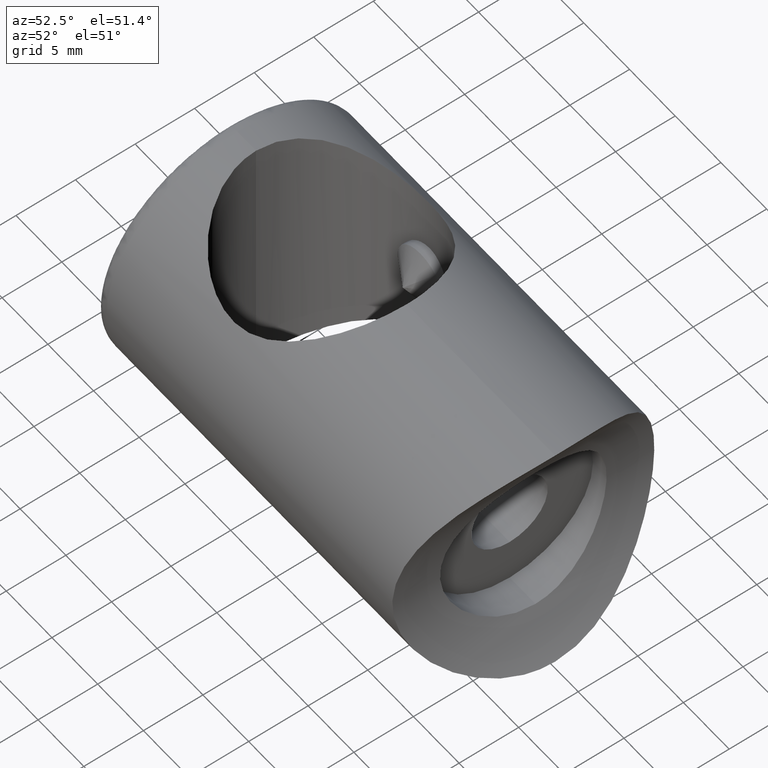
[diagram: clean part render]
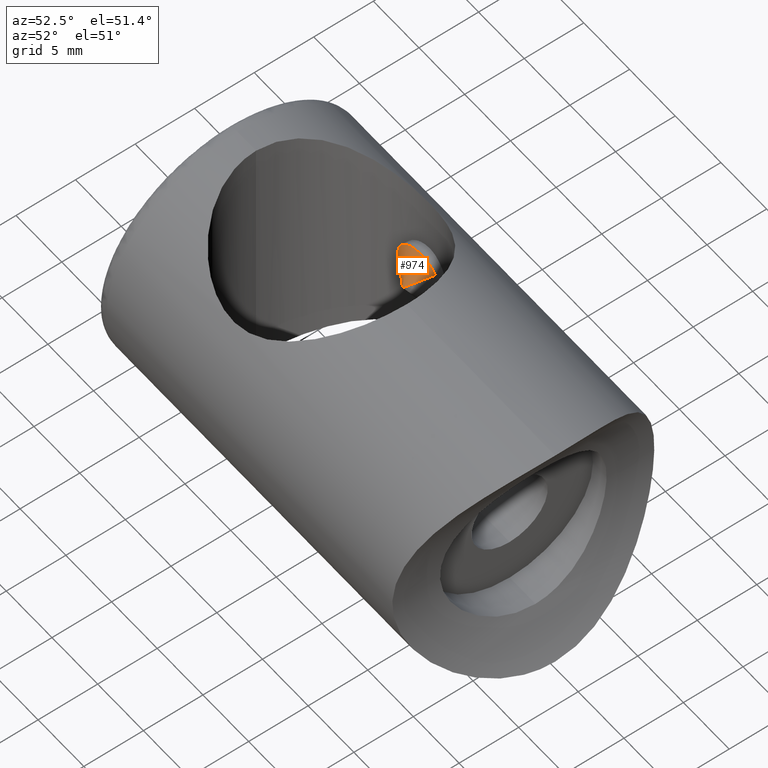
[diagram: same view with one face highlighted and labeled with its STEP entity id]
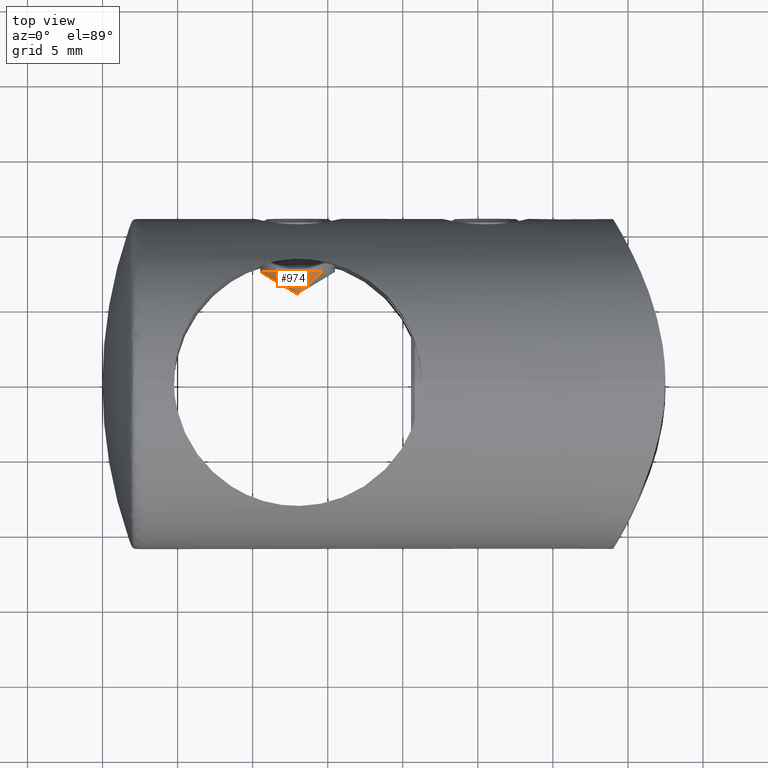
[diagram: same view with one face highlighted and labeled with its STEP entity id]
A machine part, auxiliary view. The second image highlights one B-rep face of the part: STEP entity #974.
A second angle (top view) of the same face is appended — the face is thin or edge-on in the first view.
In plain terms, the highlighted conical surface has half-angle 59 deg.
Its self-contained STEP definition (entity closure, byte-faithful):
#64 = DIRECTION ( 'NONE',  ( -0.5150380749100517100, 1.049727191138620400E-016, -0.8571673007021136700 ) ) ;
#139 = AXIS2_PLACEMENT_3D ( 'NONE', #2960, #436, #856 ) ;
#316 = AXIS2_PLACEMENT_3D ( 'NONE', #4522, #1967, #2008 ) ;
#355 = CONICAL_SURFACE ( 'NONE', #316, 0.005000000000000000100, 1.029744258676657400 ) ;
#436 = DIRECTION ( 'NONE',  ( -1.000000000000000000, -0.0000000000000000000, -0.0000000000000000000 ) ) ;
#751 = FACE_OUTER_BOUND ( 'NONE', #3851, .T. ) ;
#769 = CARTESIAN_POINT ( 'NONE',  ( 5.000000000000000900, 6.123233995736766000E-019, -0.005000000000000000100 ) ) ;
#856 = DIRECTION ( 'NONE',  ( 0.0000000000000000000, 0.0000000000000000000, 1.000000000000000000 ) ) ;
#928 = CARTESIAN_POINT ( 'NONE',  ( 3.500852755526247900, 0.0000000000000000000, 2.500000000000000000 ) ) ;
#974 = ADVANCED_FACE ( 'NONE', ( #751 ), #355, .T. ) ;
#1237 = AXIS2_PLACEMENT_3D ( 'NONE', #3040, #4715, #1675 ) ;
#1512 = CARTESIAN_POINT ( 'NONE',  ( 5.000000000000000900, 0.0000000000000000000, 0.005000000000000000100 ) ) ;
#1675 = DIRECTION ( 'NONE',  ( 0.0000000000000000000, 0.0000000000000000000, 1.000000000000000000 ) ) ;
#1680 = VERTEX_POINT ( 'NONE', #928 ) ;
#1955 = VECTOR ( 'NONE', #64, 1000.000000000000000 ) ;
#1961 = LINE ( 'NONE', #1512, #4089 ) ;
#1967 = DIRECTION ( 'NONE',  ( -1.000000000000000000, -0.0000000000000000000, -0.0000000000000000000 ) ) ;
#2008 = DIRECTION ( 'NONE',  ( 0.0000000000000000000, 0.0000000000000000000, 1.000000000000000000 ) ) ;
#2296 = CIRCLE ( 'NONE', #139, 2.500000000000000000 ) ;
#2345 = VERTEX_POINT ( 'NONE', #3347 ) ;
#2610 = EDGE_CURVE ( 'NONE', #2787, #1680, #2296, .T. ) ;
#2712 = EDGE_CURVE ( 'NONE', #2345, #1680, #1961, .T. ) ;
#2787 = VERTEX_POINT ( 'NONE', #2843 ) ;
#2843 = CARTESIAN_POINT ( 'NONE',  ( 3.500852755526247900, 3.061616997868383100E-016, -2.500000000000000000 ) ) ;
#2943 = ORIENTED_EDGE ( 'NONE', *, *, #4986, .T. ) ;
#2960 = CARTESIAN_POINT ( 'NONE',  ( 3.500852755526247900, 0.0000000000000000000, 0.0000000000000000000 ) ) ;
#3040 = CARTESIAN_POINT ( 'NONE',  ( 5.000000000000000900, 0.0000000000000000000, 0.0000000000000000000 ) ) ;
#3347 = CARTESIAN_POINT ( 'NONE',  ( 5.000000000000000900, 0.0000000000000000000, 0.005000000000000000100 ) ) ;
#3531 = EDGE_CURVE ( 'NONE', #3936, #2787, #4221, .T. ) ;
#3583 = DIRECTION ( 'NONE',  ( -0.5150380749100517100, 0.0000000000000000000, 0.8571673007021136700 ) ) ;
#3839 = CARTESIAN_POINT ( 'NONE',  ( 5.000000000000000900, 1.533870115932059800E-016, -0.005000000000000000100 ) ) ;
#3851 = EDGE_LOOP ( 'NONE', ( #3996, #2943, #5171, #4441 ) ) ;
#3936 = VERTEX_POINT ( 'NONE', #3839 ) ;
#3996 = ORIENTED_EDGE ( 'NONE', *, *, #3531, .F. ) ;
#4089 = VECTOR ( 'NONE', #3583, 1000.000000000000000 ) ;
#4221 = LINE ( 'NONE', #769, #1955 ) ;
#4441 = ORIENTED_EDGE ( 'NONE', *, *, #2610, .F. ) ;
#4522 = CARTESIAN_POINT ( 'NONE',  ( 5.000000000000000900, 0.0000000000000000000, 0.0000000000000000000 ) ) ;
#4715 = DIRECTION ( 'NONE',  ( -1.000000000000000000, -0.0000000000000000000, -0.0000000000000000000 ) ) ;
#4986 = EDGE_CURVE ( 'NONE', #3936, #2345, #5028, .T. ) ;
#5028 = CIRCLE ( 'NONE', #1237, 0.005000000000000000100 ) ;
#5171 = ORIENTED_EDGE ( 'NONE', *, *, #2712, .T. ) ;